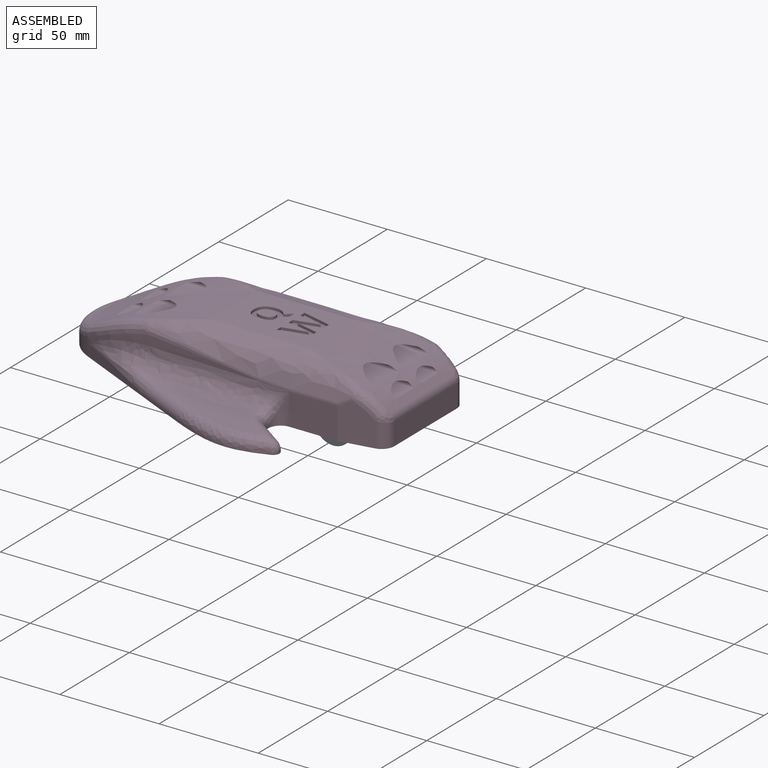
[diagram: assembled view]
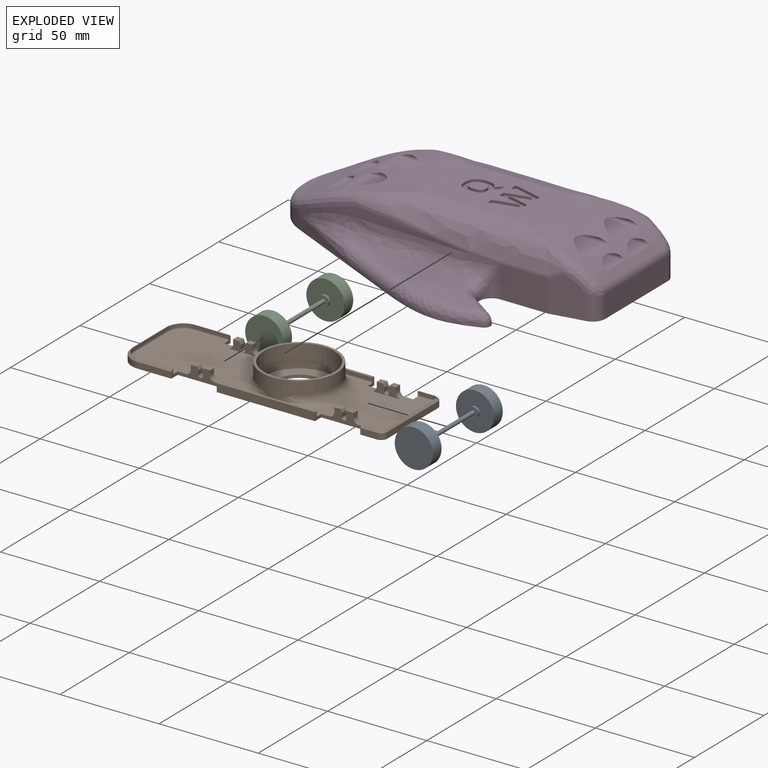
[diagram: exploded view]
GUIDED TOUR — MATED ASSEMBLY (Onshape document 9570600a750b993ef6db8a81, AutoMate assembly 9570600a750b993ef6db8a81_7b2839def73f3f706081dfb2_7f8e0b7c283f38d99e111283_default)

This assembly has 4 components, labeled P0..P3 below (a component is one placed occurrence of a part; the same part can appear more than once), held together by 4 mates. A mate is a constraint between two components; its type names the relative motion it leaves free:
  PLANAR — leaves sliding in the plane through the listed point (normal = the listed direction) and rotation about that normal free,
  REVOLUTE — leaves rotation about the listed axis free (a hinge).
Axis/direction vectors are unit vectors and 'through' points are millimeter coordinates, both in the assembly's world frame.

MATES
  1. REVOLUTE "Revolute 2": P1 <-> P2, axis (0.000, -1.000, 0.000) through (-65.52, -26.65, 17.83) mm
  2. PLANAR "Planar 3": P1 <-> P3, direction (0.000, 1.000, 0.000) through (-29.32, 11.45, 17.07) mm
  3. PLANAR "Planar 2": P3 <-> P1, direction (1.000, 0.000, 0.000) through (-103.87, -10.01, 18.21) mm
  4. PLANAR "Planar 1": P3 <-> P1, direction (0.000, 0.000, -1.000) through (-50.79, -10.01, 15.04) mm

ASSEMBLY ORDER
  1. P3 — the base component [order verified]
  2. P1 [order verified]
  3. P0 [order verified]
  4. P2 [order verified]
Order-tag legend:
  [order verified] — this step's position reverses a verified removal order: the component was checked to insert without passing through the ones already placed.

Of the 4 components, 2 carry the full construction recipe — the FeatureScript program that regenerates the part's solid from scratch; the rest are supplied as boundary geometry only.
Each toured component is shown spotlighted twice — in the assembled view, then in the exploded view, where a leader line traces a displaced component back to its assembled socket (saturated green if recipe-attached, orange if geometry-only; every other component desaturated gray) — followed by its recipe or geometry summary and the mates that hold it.
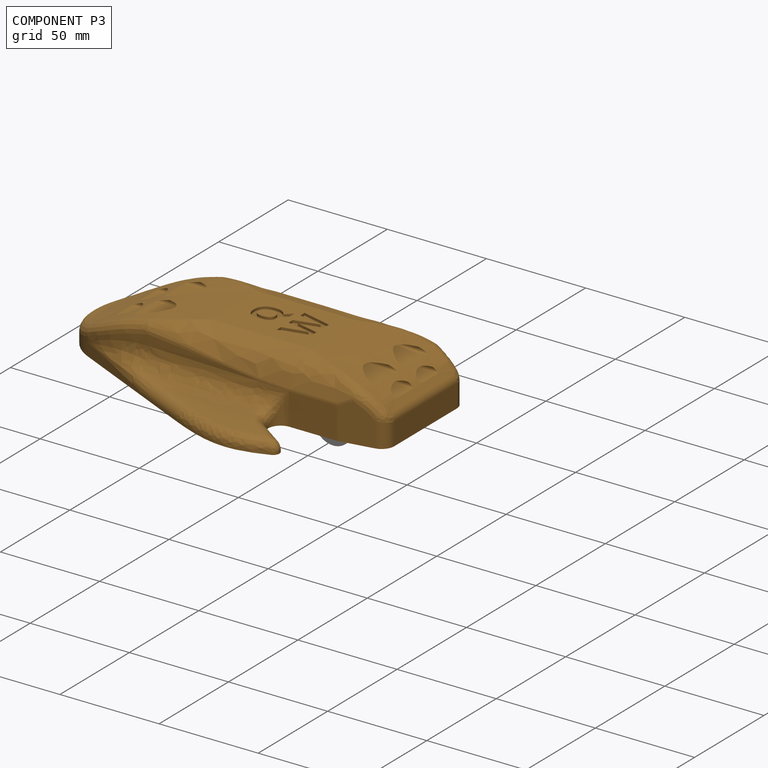
[diagram: component P3 — assembled]
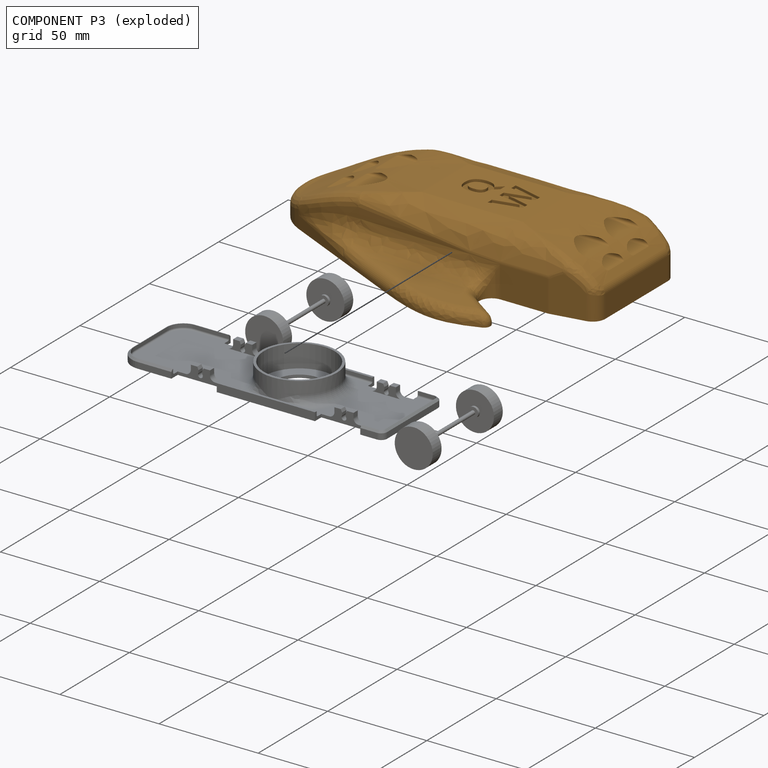
[diagram: component P3 — exploded]
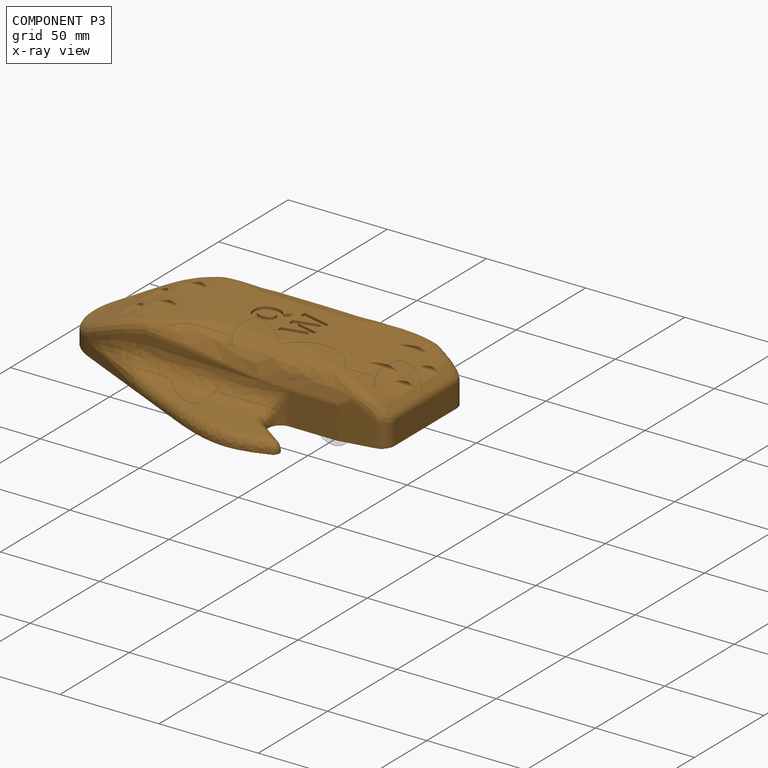
[diagram: component P3 — x-ray view]
COMPONENT P3 — geometry summary (no construction recipe available for this part):
  bounding box: 169.4 x 127.6 x 32.9 mm
  B-rep topology: 1 solid, 178 faces, 923 edges
  volume: 171826 mm^3 (24% of its bounding box)
Held by: PLANAR mate "Planar 3" to P1; PLANAR mate "Planar 2" to P1; PLANAR mate "Planar 1" to P1.
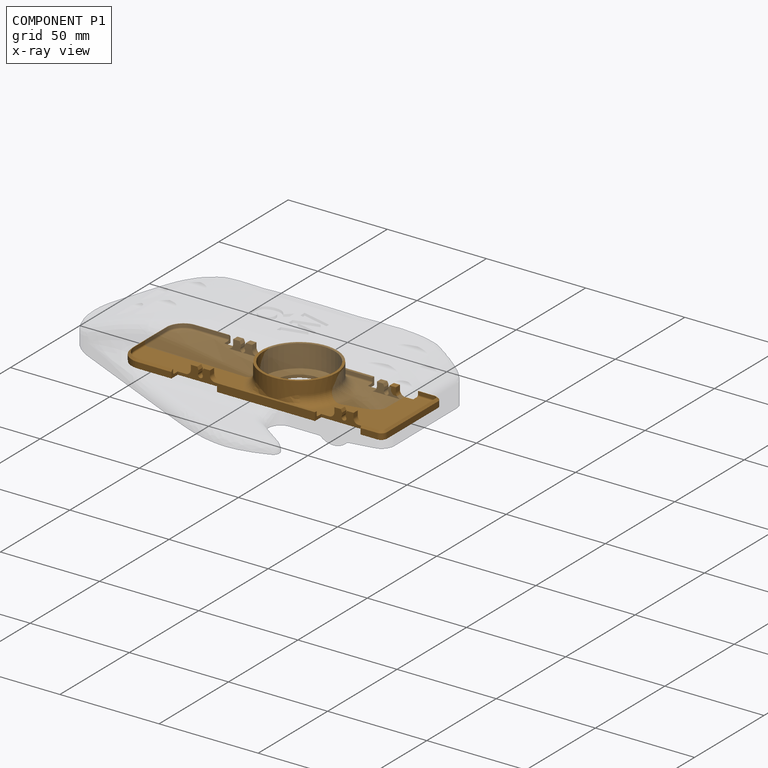
[diagram: component P1 — x-ray view]
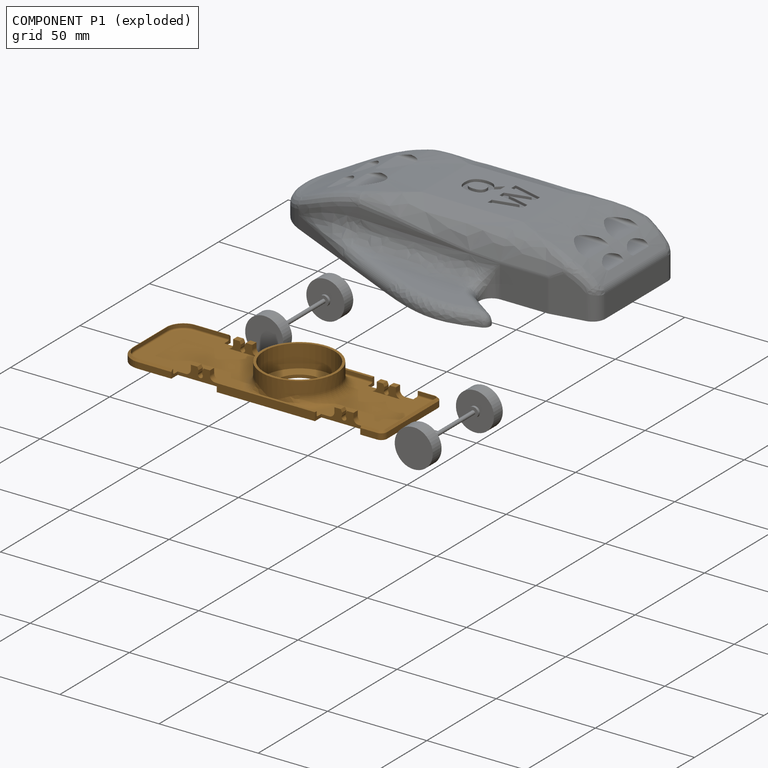
[diagram: component P1 — exploded]
COMPONENT P1 — geometry summary (no construction recipe available for this part):
  bounding box: 133.4 x 48.0 x 13.0 mm
  B-rep topology: 1 solid, 122 faces, 674 edges
  volume: 10737 mm^3 (13% of its bounding box)
  symmetry: mirror-symmetric across its y mid-plane
Held by: REVOLUTE mate "Revolute 2" to P2; PLANAR mate "Planar 3" to P3; PLANAR mate "Planar 2" to P3; PLANAR mate "Planar 1" to P3.
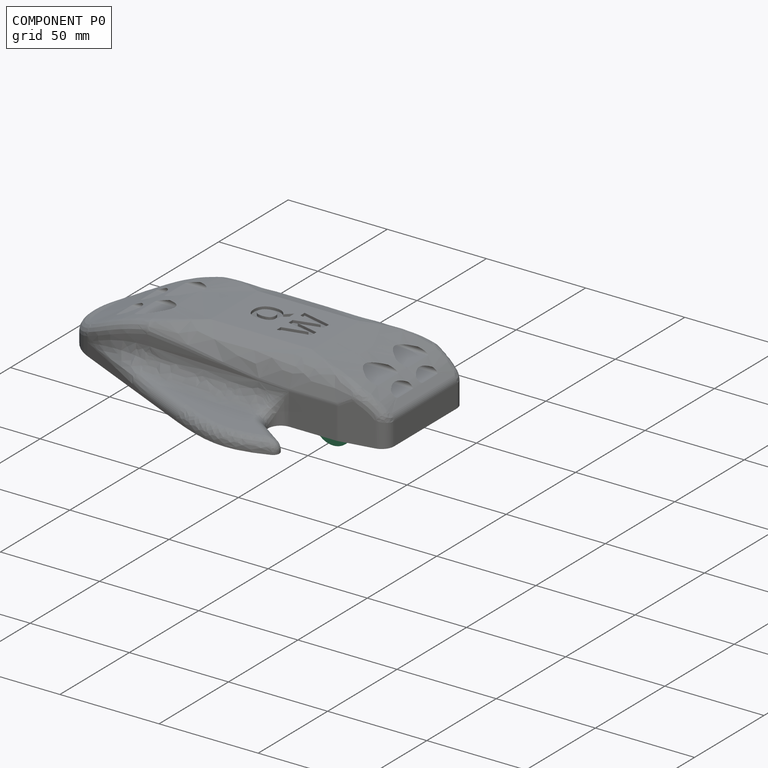
[diagram: component P0 — assembled]
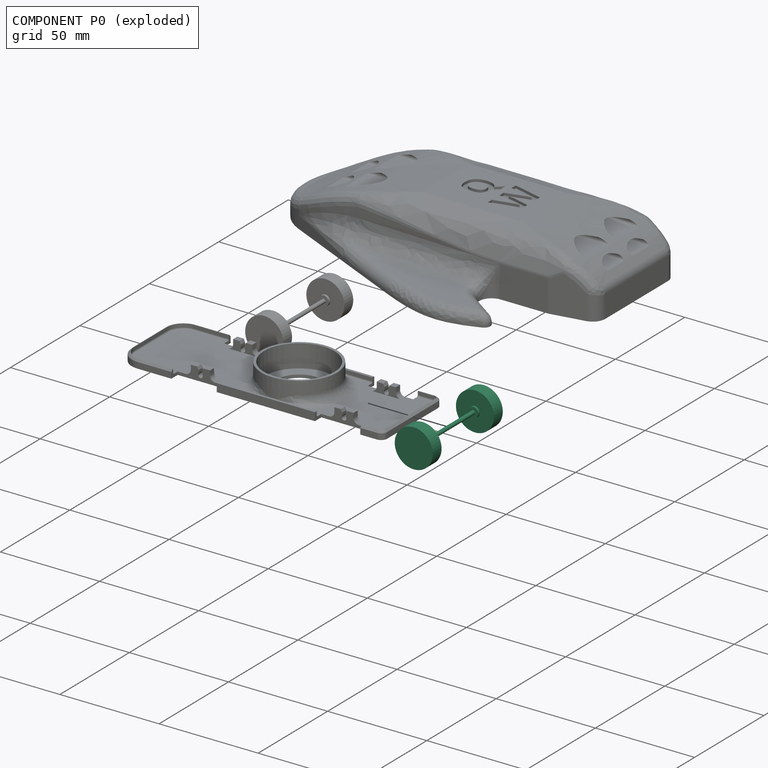
[diagram: component P0 — exploded]
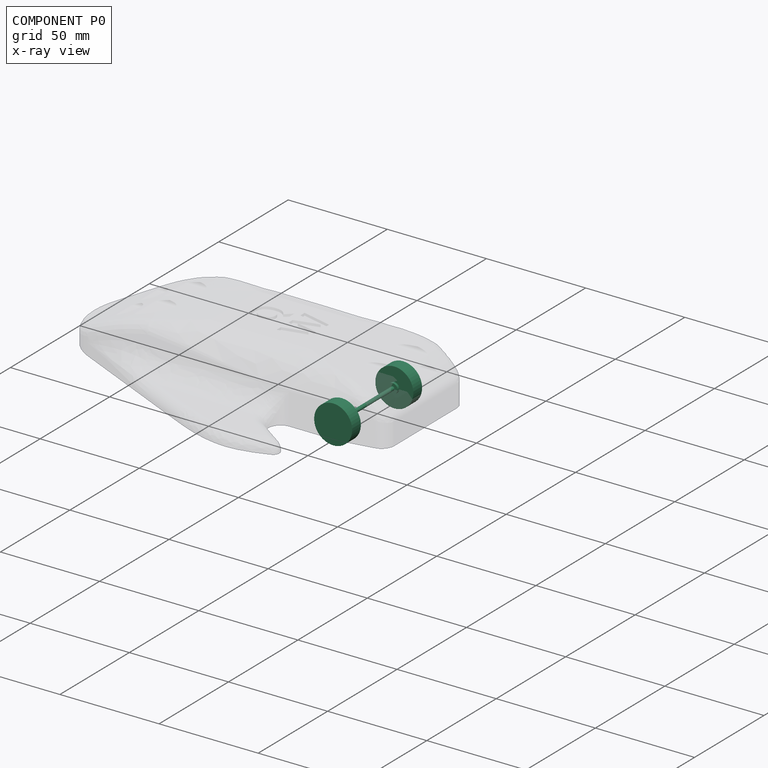
[diagram: component P0 — x-ray view]
COMPONENT P0 — recipe-attached (CADFS 00338000, mesh-verified: the recipe's output STEP matches this component's geometry to below the mesh-comparison resolution (tessellation chordal tolerance ~0.0859 mm)).
Held by: no mates (free).
Construction recipe (FeatureScript — the CAD program that rebuilds this solid; sketch coordinates are in the units given by the * unit suffixes, e.g. mm):

FeatureScript 1511;
import(path : "onshape/std/geometry.fs", version : "1511.0");
import(path : "onshape/std/common.fs", version : "1511.0");
const mm = millimeter;
const VERTEX = EntityType.VERTEX;
const EDGE = EntityType.EDGE;
const FACE = EntityType.FACE;
const BODY = EntityType.BODY;
function v(x, y){return vector(x, y);}
function OD(order){return orderDisambiguation(order);}
function OSD(set){return originalSetDisambiguation(set);}
function TD(topology){return topologyDisambiguation(topology);}
function TDD(query){return trueDependencyDisambiguation(query);}
function sQuery(a, b, c) {return sketchEntityQuery(a, b, c);}

annotation { "Feature Type Name" : "Feature", "Feature Type Description" : "" }
export const myFeature = defineFeature(function(context is Context, id is Id, definition is map)
    precondition{}
    {
        {
            var Q0;
            Q0=qCreatedBy(makeId("Front.planeOp"),FACE);
            var sketch = newSketch(context, id + "F0", { "sketchPlane" : qUnion([Q0])});
            skLineSegment(sketch, "E0", {"start": v(0, 0) * mm, "end": v(89.7, 0) * mm, "construction": true});
            skLineSegment(sketch, "E1", {"start": v(0, 20.58) * mm, "end": v(0, -19.87) * mm, "construction": true});
            skLineSegment(sketch, "E2", {"start": v(0, 0.98) * mm, "end": v(17.65, 0.98) * mm});
            skLineSegment(sketch, "E3", {"start": v(17.65, 0.98) * mm, "end": v(17.65, 2.5) * mm});
            skLineSegment(sketch, "E4", {"start": v(17.65, 2.5) * mm, "end": v(18.86, 2.5) * mm});
            skLineSegment(sketch, "E5", {"start": v(18.86, 2.5) * mm, "end": v(18.86, 9.6) * mm});
            skLineSegment(sketch, "E6", {"start": v(18.86, 9.6) * mm, "end": v(25.2, 9.6) * mm});
            skLineSegment(sketch, "E7", {"start": v(25.2, 9.6) * mm, "end": v(25.2, 0) * mm});
            skLineSegment(sketch, "E8.MirrorCS", {"start": v(-17.65, 0.98) * mm, "end": v(-17.65, 2.5) * mm});
            skLineSegment(sketch, "E9.MirrorCS", {"start": v(-17.65, 2.5) * mm, "end": v(-18.86, 2.5) * mm});
            skLineSegment(sketch, "E10.MirrorCS", {"start": v(0, 0.98) * mm, "end": v(-17.65, 0.98) * mm});
            skLineSegment(sketch, "E11.MirrorCS", {"start": v(-18.86, 2.5) * mm, "end": v(-18.86, 9.6) * mm});
            skLineSegment(sketch, "E12.MirrorCS", {"start": v(-25.2, 9.6) * mm, "end": v(-25.2, 0) * mm});
            skLineSegment(sketch, "E13.MirrorCS", {"start": v(-18.86, 9.6) * mm, "end": v(-25.2, 9.6) * mm});
            skLineSegment(sketch, "E14", {"start": v(-25.2, 0) * mm, "end": v(25.2, 0) * mm});
            skSolve(sketch);
        }
        {
            var Q0;
            Q0 = qSketchRegion(id + "F0", true);
            var Q1;
            Q1=sQuery(id+"F0.wireOp",EDGE,"E0");
            revolve(context, id + "F1", {"entities" : qUnion([Q0]), "axis" : qUnion([Q1]), "revolveType" : RevolveType.FULL});
        }
    });
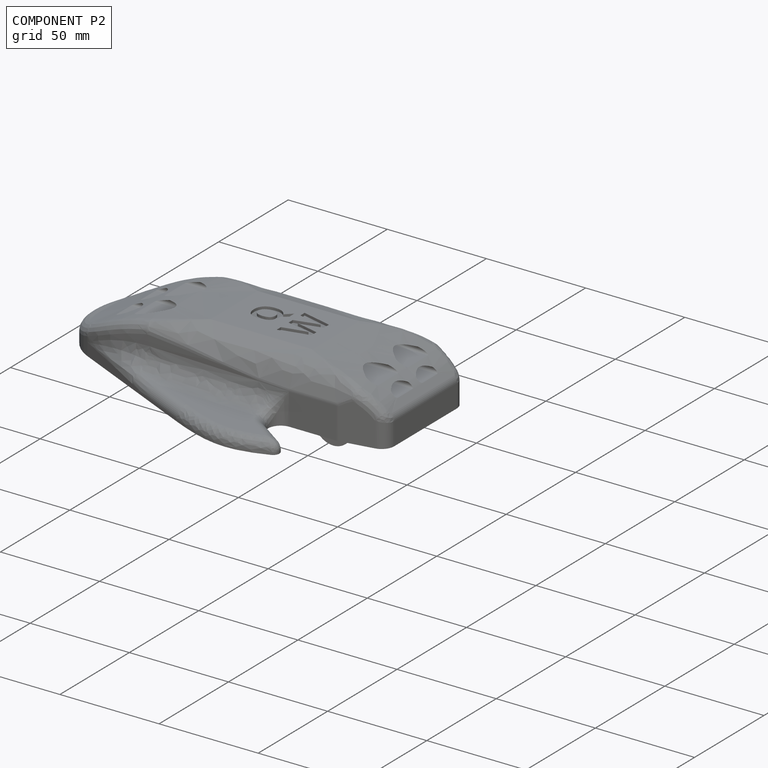
[diagram: component P2 — assembled]
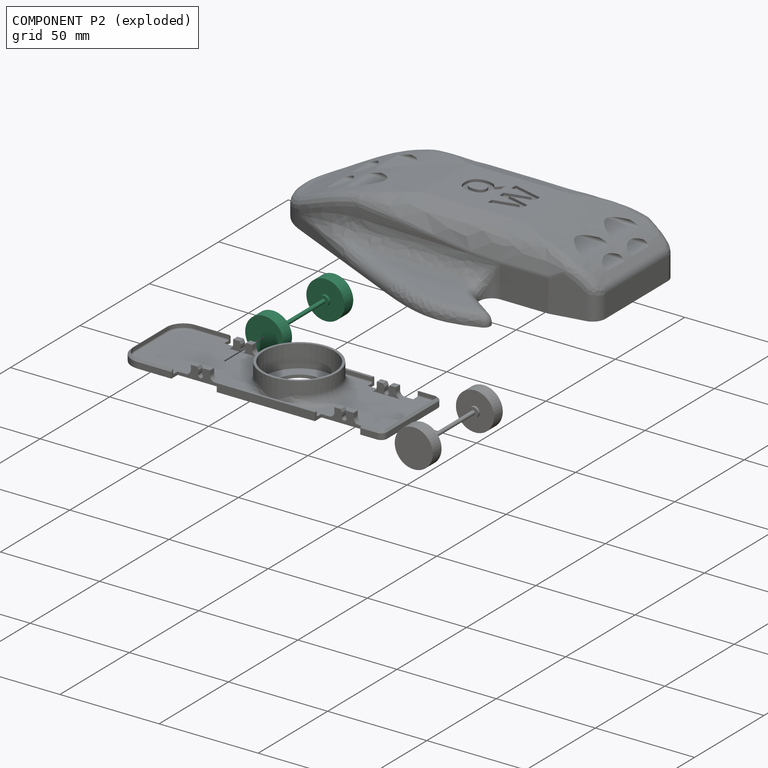
[diagram: component P2 — exploded]
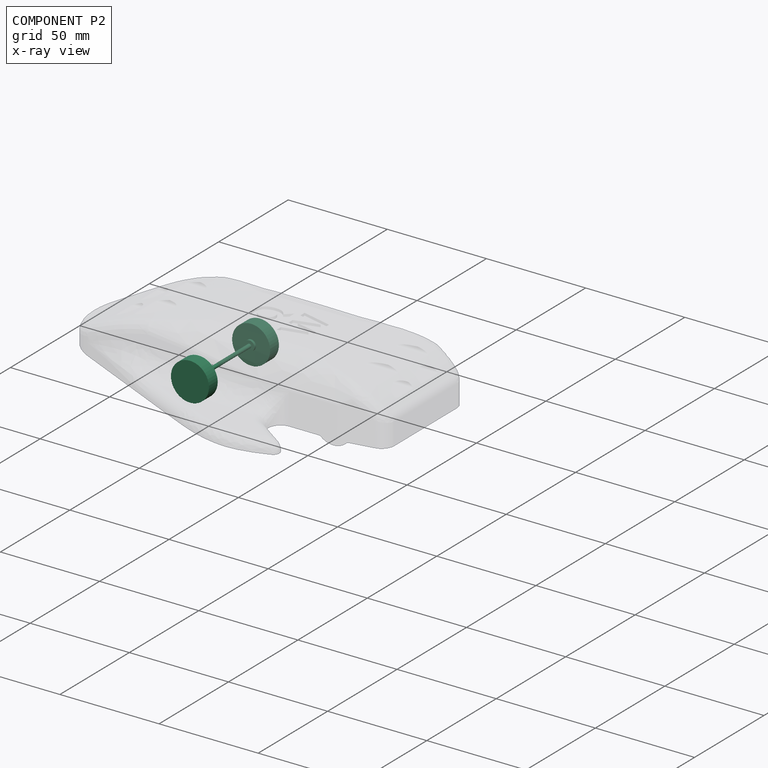
[diagram: component P2 — x-ray view]
COMPONENT P2 — same part as P0 (CADFS 00338000); its construction recipe is shown at P0.
Held by: REVOLUTE mate "Revolute 2" to P1.
PROVENANCE & LICENSES
Assembly (occurrences, transforms, mates, per-part STEP geometry): AutoMate dataset, Zenodo record 7776208, CC0.
Construction recipes: CADFS (HuggingFace VladPyatov/CADFS, CC-BY-4.0, layered over the ABC dataset), FeatureScript reconstruction programs keyed by ABC model id.
Join: ABC meta listings map ABC model id -> Onshape documentId; within a shared document, parts are matched by geometric signature (bounding-box dims + volume at 0.1% relative tolerance, exact B-rep face/solid counts).
Verification: 2 of this assembly's 4 components carry a recipe attachment, and every attachment is mesh-verified: the CADFS STEP and the AutoMate member STEP were compared as meshes in their shared local frame (symmetric sampled-point-to-mesh distance); worst across the 2 attachments: below the mesh-comparison resolution (tessellation chordal tolerance ~0.0859 mm) on a 57 mm part.
Renders: orthographic iso camera (az 35 / el 25); the floor grid conveys scale (grid pitch printed in each image; no ruler). In the exploded view each component is displaced by its stored offset vector: the offsets alone carry the explosion direction (mate normal/axis signs are not orientation cues and do not encode it), and separation distances are assigned per mate-chain, not proportionally to assembly-order depth.
